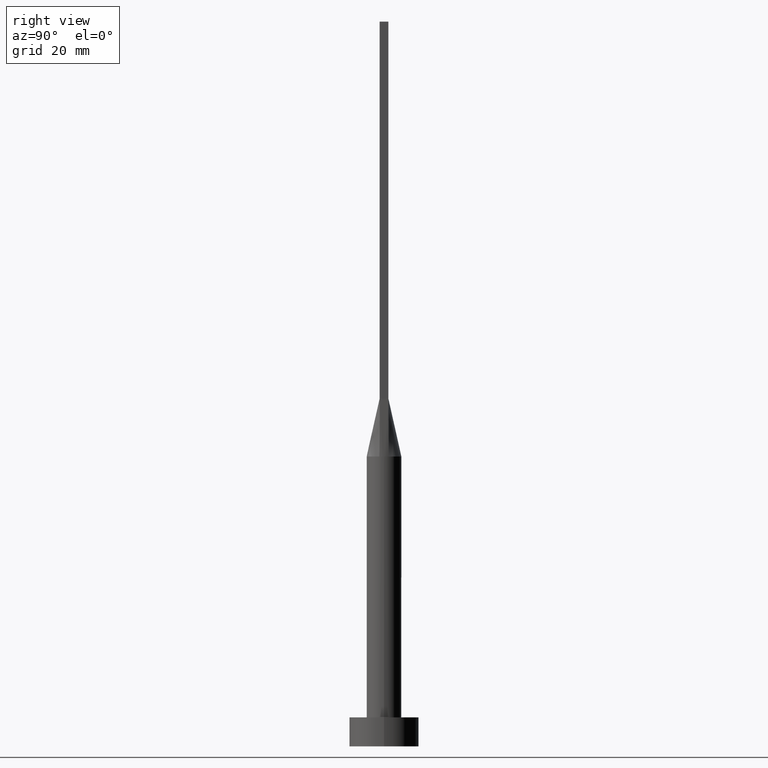
[diagram: clean part render]
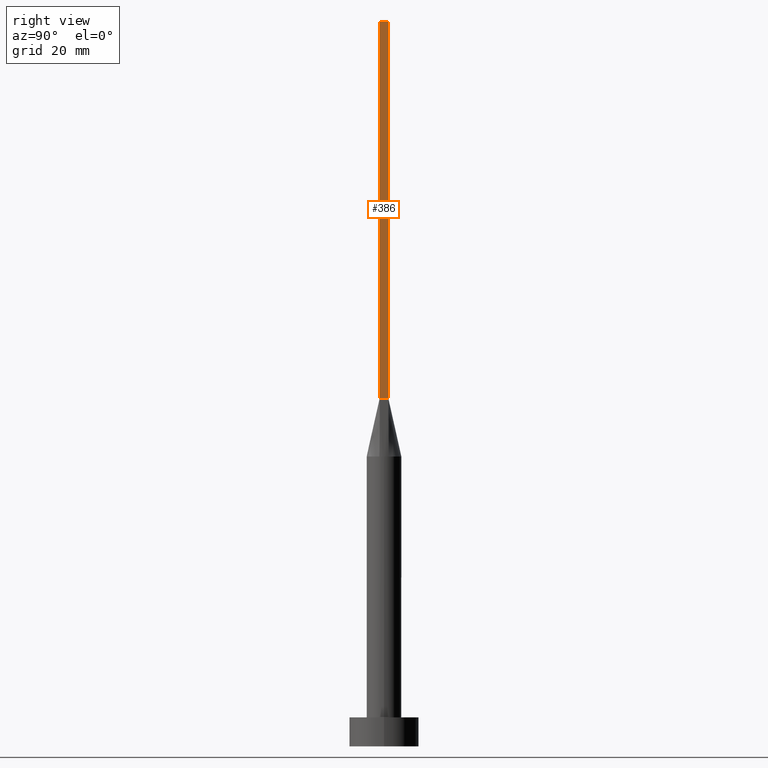
[diagram: same view with one face highlighted and labeled with its STEP entity id]
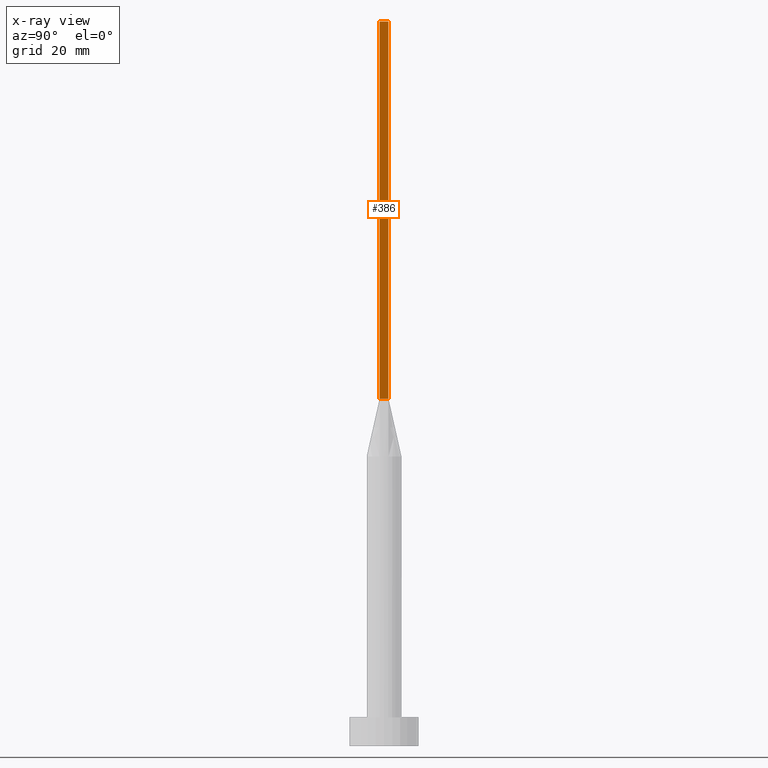
[diagram: x-ray of the same camera — body ghosted, the highlighted face saturated]
A machine part, right view. The second image highlights one B-rep face of the part: STEP entity #386.
The next image is the same camera in x-ray: the body ghosted, the highlighted face saturated — about 0% of this face is hidden behind the body in this view.
In plain terms, the highlighted planar face has unit normal (-1, 0, 0).
Its self-contained STEP definition (entity closure, byte-faithful):
#31 = FACE_OUTER_BOUND ( 'NONE', #140, .T. ) ;
#38 = LINE ( 'NONE', #219, #320 ) ;
#58 = EDGE_CURVE ( 'NONE', #469, #442, #152, .T. ) ;
#66 = CARTESIAN_POINT ( 'NONE',  ( 2.750000000000000000, 0.7500000000000002220, 60.00000000000000000 ) ) ;
#75 = EDGE_CURVE ( 'NONE', #461, #469, #368, .T. ) ;
#97 = ORIENTED_EDGE ( 'NONE', *, *, #75, .T. ) ;
#108 = CARTESIAN_POINT ( 'NONE',  ( 2.750000000000000000, -0.7499999999999997780, 125.0000000000000000 ) ) ;
#123 = DIRECTION ( 'NONE',  ( -1.000000000000000000, 0.000000000000000000, 0.000000000000000000 ) ) ;
#131 = VECTOR ( 'NONE', #463, 1000.000000000000000 ) ;
#140 = EDGE_LOOP ( 'NONE', ( #417, #273, #491, #97 ) ) ;
#152 = LINE ( 'NONE', #66, #193 ) ;
#155 = DIRECTION ( 'NONE',  ( -0.000000000000000000, 1.000000000000000000, -0.000000000000000000 ) ) ;
#164 = DIRECTION ( 'NONE',  ( -0.000000000000000000, -0.000000000000000000, -1.000000000000000000 ) ) ;
#193 = VECTOR ( 'NONE', #155, 1000.000000000000000 ) ;
#202 = AXIS2_PLACEMENT_3D ( 'NONE', #523, #123, #482 ) ;
#219 = CARTESIAN_POINT ( 'NONE',  ( 2.750000000000000000, 0.7500000000000002220, 125.0000000000000000 ) ) ;
#273 = ORIENTED_EDGE ( 'NONE', *, *, #423, .F. ) ;
#305 = CARTESIAN_POINT ( 'NONE',  ( 2.750000000000000000, -0.7499999999999997780, 125.0000000000000000 ) ) ;
#309 = CARTESIAN_POINT ( 'NONE',  ( 2.750000000000000000, -0.7499999999999997780, 60.00000000000000000 ) ) ;
#310 = VERTEX_POINT ( 'NONE', #393 ) ;
#320 = VECTOR ( 'NONE', #164, 1000.000000000000000 ) ;
#324 = LINE ( 'NONE', #108, #131 ) ;
#334 = PLANE ( 'NONE',  #202 ) ;
#368 = LINE ( 'NONE', #464, #512 ) ;
#377 = DIRECTION ( 'NONE',  ( -0.000000000000000000, -0.000000000000000000, -1.000000000000000000 ) ) ;
#386 = ADVANCED_FACE ( 'NONE', ( #31 ), #334, .F. ) ;
#393 = CARTESIAN_POINT ( 'NONE',  ( 2.750000000000000000, 0.7500000000000002220, 125.0000000000000000 ) ) ;
#417 = ORIENTED_EDGE ( 'NONE', *, *, #58, .T. ) ;
#423 = EDGE_CURVE ( 'NONE', #310, #442, #38, .T. ) ;
#442 = VERTEX_POINT ( 'NONE', #533 ) ;
#461 = VERTEX_POINT ( 'NONE', #305 ) ;
#463 = DIRECTION ( 'NONE',  ( 0.000000000000000000, 1.000000000000000000, 0.000000000000000000 ) ) ;
#464 = CARTESIAN_POINT ( 'NONE',  ( 2.750000000000000000, -0.7499999999999997780, 125.0000000000000000 ) ) ;
#469 = VERTEX_POINT ( 'NONE', #309 ) ;
#482 = DIRECTION ( 'NONE',  ( 0.000000000000000000, 0.000000000000000000, 1.000000000000000000 ) ) ;
#491 = ORIENTED_EDGE ( 'NONE', *, *, #547, .F. ) ;
#512 = VECTOR ( 'NONE', #377, 1000.000000000000000 ) ;
#523 = CARTESIAN_POINT ( 'NONE',  ( 2.750000000000000000, -0.7499999999999997780, 125.0000000000000000 ) ) ;
#533 = CARTESIAN_POINT ( 'NONE',  ( 2.750000000000000000, 0.7500000000000002220, 60.00000000000000000 ) ) ;
#547 = EDGE_CURVE ( 'NONE', #461, #310, #324, .T. ) ;